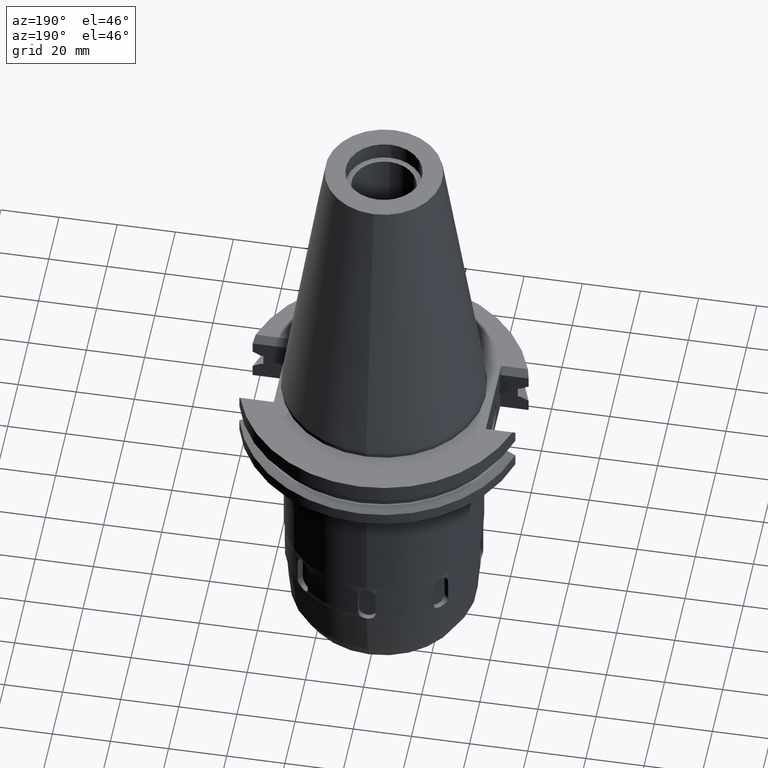
[diagram: clean part render]
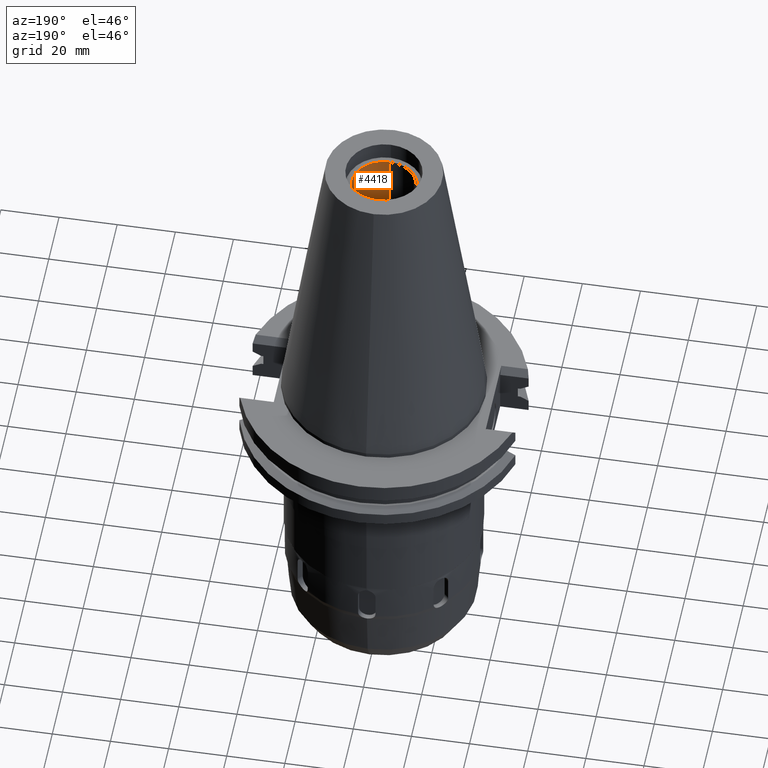
[diagram: same view with one face highlighted and labeled with its STEP entity id]
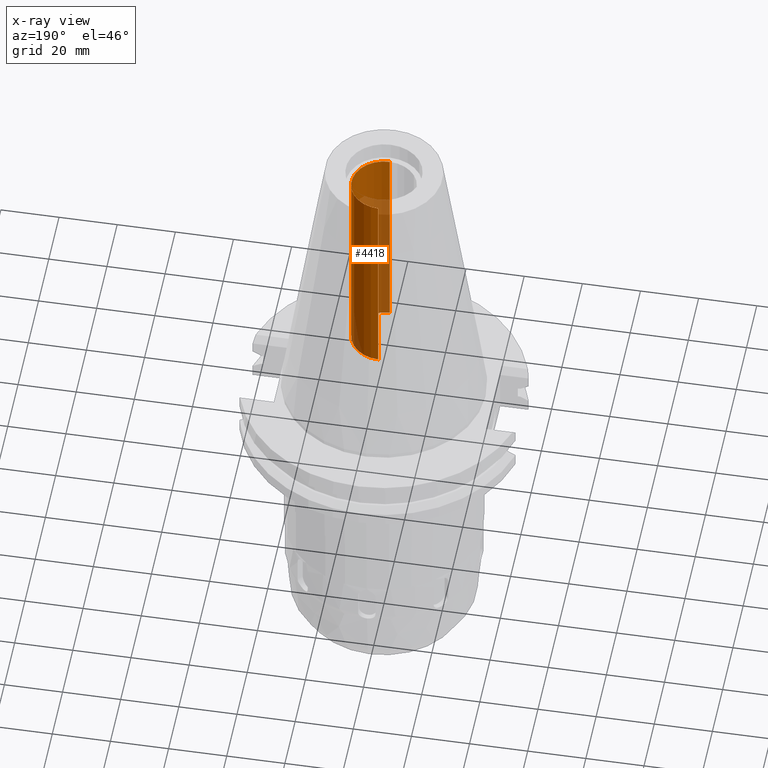
[diagram: x-ray of the same camera — body ghosted, the highlighted face saturated]
A machine part, auxiliary view. The second image highlights one B-rep face of the part: STEP entity #4418.
The next image is the same camera in x-ray: the body ghosted, the highlighted face saturated — about 25% of this face is hidden behind the body in this view.
In plain terms, the highlighted cylindrical surface (edge-blend (fillet) strip) has radius 11.15 mm, axis along (0, 0, 1).
Its self-contained STEP definition (entity closure, byte-faithful):
#2079=CARTESIAN_POINT('',(0.E0,0.E0,2.16E1));
#2080=DIRECTION('',(0.E0,0.E0,-1.E0));
#2081=DIRECTION('',(0.E0,1.E0,0.E0));
#2082=AXIS2_PLACEMENT_3D('',#2079,#2080,#2081);
#2103=DIRECTION('',(0.E0,0.E0,1.E0));
#2104=VECTOR('',#2103,7.365E1);
#2105=CARTESIAN_POINT('',(0.E0,-1.115E1,2.16E1));
#2106=LINE('',#2105,#2104);
#2110=DIRECTION('',(0.E0,0.E0,1.E0));
#2111=VECTOR('',#2110,7.365E1);
#2112=CARTESIAN_POINT('',(0.E0,1.115E1,2.16E1));
#2113=LINE('',#2112,#2111);
#2133=CARTESIAN_POINT('',(0.E0,0.E0,9.525E1));
#2134=DIRECTION('',(0.E0,0.E0,1.E0));
#2135=DIRECTION('',(0.E0,-1.E0,0.E0));
#2136=AXIS2_PLACEMENT_3D('',#2133,#2134,#2135);
#2883=CARTESIAN_POINT('',(0.E0,-1.115E1,2.16E1));
#2884=CARTESIAN_POINT('',(0.E0,1.115E1,2.16E1));
#2885=VERTEX_POINT('',#2883);
#2886=VERTEX_POINT('',#2884);
#2887=CARTESIAN_POINT('',(0.E0,1.115E1,9.525E1));
#2888=VERTEX_POINT('',#2887);
#2889=CARTESIAN_POINT('',(0.E0,-1.115E1,9.525E1));
#2890=VERTEX_POINT('',#2889);
#4406=CARTESIAN_POINT('',(0.E0,0.E0,-1.1533E2));
#4407=DIRECTION('',(0.E0,0.E0,1.E0));
#4408=DIRECTION('',(0.E0,1.E0,0.E0));
#4409=AXIS2_PLACEMENT_3D('',#4406,#4407,#4408);
#4410=CYLINDRICAL_SURFACE('',#4409,1.115E1);
#4411=ORIENTED_EDGE('',*,*,#4396,.T.);
#4413=ORIENTED_EDGE('',*,*,#4412,.F.);
#4414=ORIENTED_EDGE('',*,*,#4399,.F.);
#4415=ORIENTED_EDGE('',*,*,#4382,.F.);
#4416=EDGE_LOOP('',(#4411,#4413,#4414,#4415));
#4417=FACE_OUTER_BOUND('',#4416,.F.);
#2083=CIRCLE('',#2082,1.115E1);
#2137=CIRCLE('',#2136,1.115E1);
#4382=EDGE_CURVE('',#2886,#2885,#2083,.T.);
#4396=EDGE_CURVE('',#2886,#2888,#2113,.T.);
#4399=EDGE_CURVE('',#2885,#2890,#2106,.T.);
#4412=EDGE_CURVE('',#2890,#2888,#2137,.T.);
#4418=ADVANCED_FACE('',(#4417),#4410,.F.);